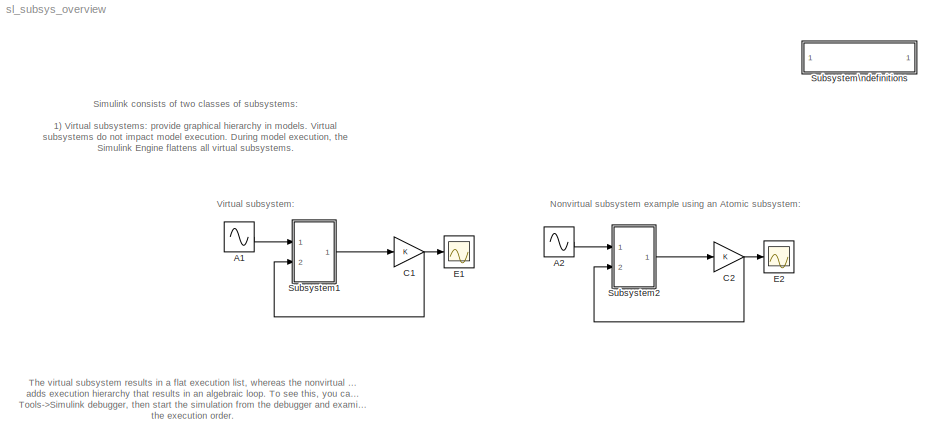
MODEL sl_subsys_overview
KIND model
BLOCK [SubSystem]  Subsystem\ndefinitions
  MaskDisplay = disp('Subsystem\\ndefinitions')\n\n
  MaskIconFrame = on
  MaskIconOpaque = on
  MaskIconRotate = none
  MaskIconUnits = autoscale
  MinAlgLoopOccurrences = off
  OpenFcn = helpview([matlabroot,'/toolbox/simulink/simdemos/sl_subsys_definitions.html']);
  Ports = []
  PropExecContextAcrossSSBoundary = on
  RTWSystemCode = Auto
  TreatAsAtomicUnit = off
BLOCK [Sin] A1
  Ports = [0, 1]
  SampleTime = 0
  SineType = Time based
BLOCK [Sin] A2
  Ports = [0, 1]
  SampleTime = 0
  SineType = Time based
BLOCK [Gain] C1
BLOCK [Gain] C2
BLOCK [Scope] E1
  DataFormat = StructureWithTime
  NumInputPorts = 1
  Ports = [1]
  SaveName = ScopeData1
BLOCK [Scope] E2
  DataFormat = StructureWithTime
  NumInputPorts = 1
  Ports = [1]
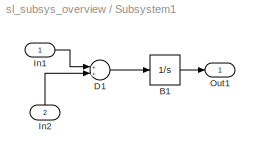
BLOCK [SubSystem] Subsystem1
  MinAlgLoopOccurrences = off
  Ports = [2, 1]
  PropExecContextAcrossSSBoundary = on
  RTWSystemCode = Auto
  TreatAsAtomicUnit = off
BLOCK [Integrator] Subsystem1/B1
  Ports = [1, 1]
BLOCK [Sum] Subsystem1/D1
  Ports = [2, 1]
BLOCK [Inport] Subsystem1/In1
  IconDisplay = Port number
  LatchInput = off
  Port = 1
BLOCK [Inport] Subsystem1/In2
  IconDisplay = Port number
  LatchInput = off
  Port = 2
BLOCK [Outport] Subsystem1/Out1
  BusOutputAsStruct = off
  IconDisplay = Port number
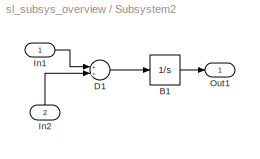
BLOCK [SubSystem] Subsystem2
  MinAlgLoopOccurrences = off
  Ports = [2, 1]
  PropExecContextAcrossSSBoundary = on
  RTWSystemCode = Auto
  TreatAsAtomicUnit = on
BLOCK [Integrator] Subsystem2/B1
  Ports = [1, 1]
BLOCK [Sum] Subsystem2/D1
  Ports = [2, 1]
BLOCK [Inport] Subsystem2/In1
  IconDisplay = Port number
  LatchInput = off
  Port = 1
BLOCK [Inport] Subsystem2/In2
  IconDisplay = Port number
  LatchInput = off
  Port = 2
BLOCK [Outport] Subsystem2/Out1
  BusOutputAsStruct = off
  IconDisplay = Port number
ANNOTATION (root): Nonvirtual subsystem example using an Atomic subsystem:
ANNOTATION (root): Simulink consists of two classes of subsystems:\n\n1) Virtual subsystems: provide graphical hierarchy in models. Virtual \n subsystems do not impact model execution. During model execution, the\n Simulink Engine flattens all virtual subsystems.\n\n2) Nonvirtual subsystems: provide execution and graphical hierarchy in models. \n Nonvirtual subsystems are executed as a single unit (atomic execution)...<+171ch>
ANNOTATION (root): The virtual subsystem results in a flat execution list, whereas the nonvirtual subsystem \nadds execution hierarchy that results in an algebraic loop. To see this, you can select\nTools->Simulink debugger, then start the simulation from the debugger and examine \n the execution order.
ANNOTATION (root): Virtual subsystem:
LINE A1:1 -> Subsystem1:1
LINE A2:1 -> Subsystem2:1
NET C1:1 -> E1:1, Subsystem1:2
NET C2:1 -> E2:1, Subsystem2:2
LINE Subsystem1/B1:1 -> Subsystem1/Out1:1
LINE Subsystem1/D1:1 -> Subsystem1/B1:1
LINE Subsystem1/In1:1 -> Subsystem1/D1:1
LINE Subsystem1/In2:1 -> Subsystem1/D1:2
LINE Subsystem1:1 -> C1:1
LINE Subsystem2/B1:1 -> Subsystem2/Out1:1
LINE Subsystem2/D1:1 -> Subsystem2/B1:1
LINE Subsystem2/In1:1 -> Subsystem2/D1:1
LINE Subsystem2/In2:1 -> Subsystem2/D1:2
LINE Subsystem2:1 -> C2:1
note: NET lines group one-source signal fan-out (src -> all destinations, sorted); 1:1 wires keep LINE
